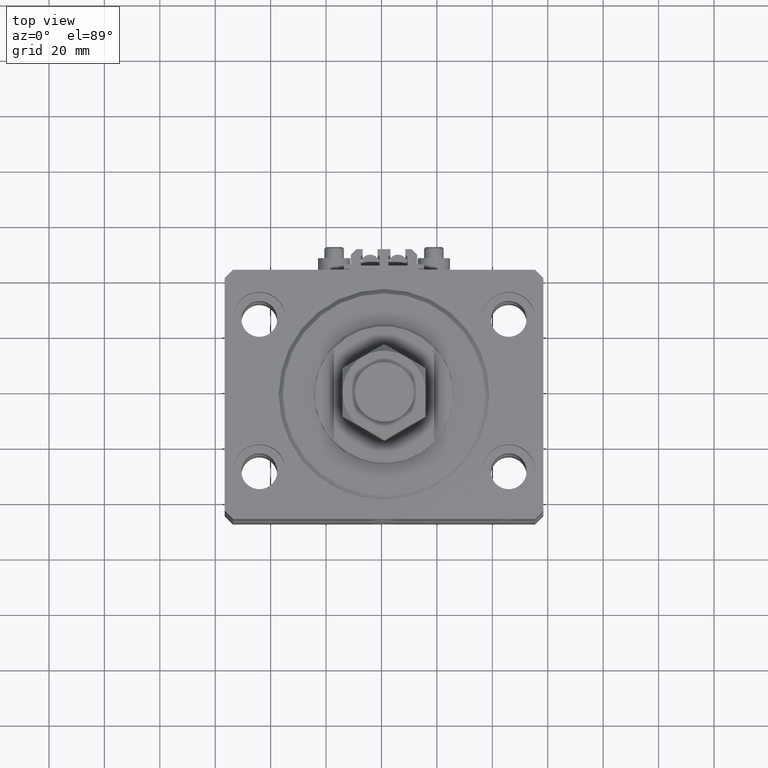
[diagram: clean part render]
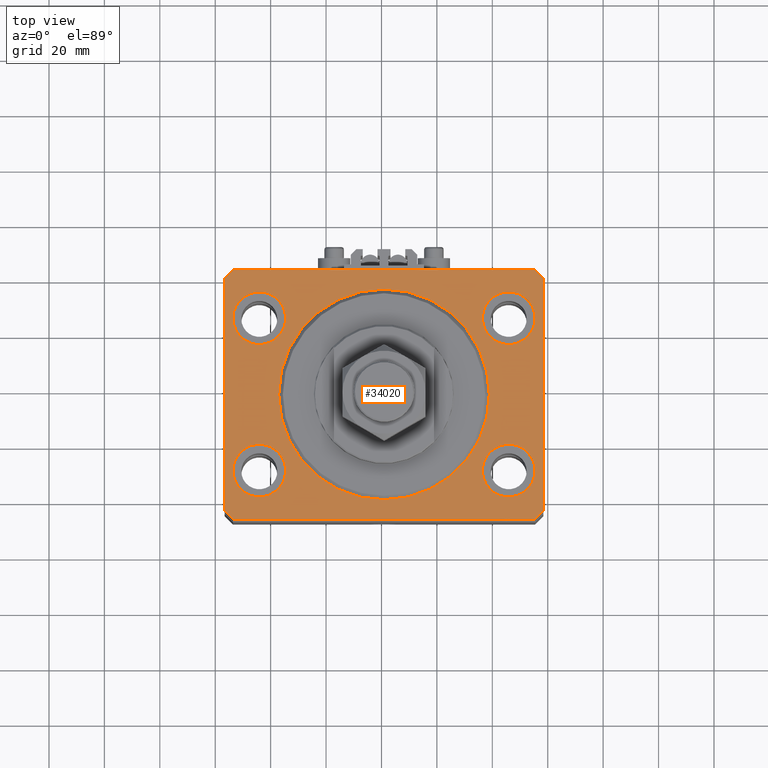
[diagram: same view with one face highlighted and labeled with its STEP entity id]
A machine part, top view. The second image highlights one B-rep face of the part: STEP entity #34020.
In plain terms, the highlighted planar face has unit normal (0, 0, 1).
Its self-contained STEP definition (entity closure, byte-faithful):
#561 = EDGE_LOOP ( 'NONE', ( #21848, #33538 ) ) ;
#698 = CARTESIAN_POINT ( 'NONE',  ( -45.00000000000000000, 27.50000000000000355, 0.000000000000000000 ) ) ;
#759 = DIRECTION ( 'NONE',  ( 1.000000000000000000, 0.000000000000000000, 0.000000000000000000 ) ) ;
#820 = LINE ( 'NONE', #36626, #8976 ) ;
#1121 = DIRECTION ( 'NONE',  ( 0.7071067811865483499, 0.7071067811865466846, 0.000000000000000000 ) ) ;
#1137 = CARTESIAN_POINT ( 'NONE',  ( 45.00000000000000000, 27.50000000000001776, 0.000000000000000000 ) ) ;
#1316 = CARTESIAN_POINT ( 'NONE',  ( 54.50000000000058975, 45.00000000000002842, 0.000000000000000000 ) ) ;
#1397 = DIRECTION ( 'NONE',  ( 1.000000000000000000, 0.000000000000000000, 0.000000000000000000 ) ) ;
#1443 = ORIENTED_EDGE ( 'NONE', *, *, #35913, .F. ) ;
#1833 = VERTEX_POINT ( 'NONE', #3881 ) ;
#2279 = ORIENTED_EDGE ( 'NONE', *, *, #46716, .F. ) ;
#3377 = EDGE_LOOP ( 'NONE', ( #42909, #42646 ) ) ;
#3881 = CARTESIAN_POINT ( 'NONE',  ( 54.50000000000000711, -44.99999999999998579, 0.000000000000000000 ) ) ;
#3904 = ORIENTED_EDGE ( 'NONE', *, *, #12902, .T. ) ;
#3964 = CARTESIAN_POINT ( 'NONE',  ( -54.49999999999999289, 45.00000000000000000, 0.000000000000000000 ) ) ;
#4034 = DIRECTION ( 'NONE',  ( 1.000000000000000000, 0.000000000000000000, 0.000000000000000000 ) ) ;
#4516 = EDGE_CURVE ( 'NONE', #5685, #42841, #41901, .T. ) ;
#4530 = EDGE_CURVE ( 'NONE', #42841, #5685, #13532, .T. ) ;
#4714 = LINE ( 'NONE', #3964, #12663 ) ;
#4797 = CARTESIAN_POINT ( 'NONE',  ( 54.50000000000058975, 45.00000000000002842, 0.000000000000000000 ) ) ;
#5550 = VERTEX_POINT ( 'NONE', #11218 ) ;
#5554 = FACE_BOUND ( 'NONE', #3377, .T. ) ;
#5685 = VERTEX_POINT ( 'NONE', #45376 ) ;
#5791 = LINE ( 'NONE', #50215, #45013 ) ;
#6205 = EDGE_CURVE ( 'NONE', #14405, #11109, #34468, .T. ) ;
#6794 = VECTOR ( 'NONE', #26138, 1000.000000000000000 ) ;
#7155 = EDGE_CURVE ( 'NONE', #10666, #14037, #4714, .T. ) ;
#7238 = CARTESIAN_POINT ( 'NONE',  ( -54.50000000000000000, 27.50000000000000355, 0.000000000000000000 ) ) ;
#8053 = DIRECTION ( 'NONE',  ( 0.000000000000000000, 0.000000000000000000, 1.000000000000000000 ) ) ;
#8141 = DIRECTION ( 'NONE',  ( 1.000000000000000000, 0.000000000000000000, 0.000000000000000000 ) ) ;
#8555 = CARTESIAN_POINT ( 'NONE',  ( 57.50000000000055422, 41.99999999999997868, 0.000000000000000000 ) ) ;
#8913 = CIRCLE ( 'NONE', #9734, 9.500000000000001776 ) ;
#8976 = VECTOR ( 'NONE', #40295, 1000.000000000000000 ) ;
#9139 = CARTESIAN_POINT ( 'NONE',  ( 57.50000000000000711, -41.99999999999998579, 0.000000000000000000 ) ) ;
#9238 = FACE_BOUND ( 'NONE', #561, .T. ) ;
#9646 = DIRECTION ( 'NONE',  ( 0.000000000000000000, 0.000000000000000000, 1.000000000000000000 ) ) ;
#9734 = AXIS2_PLACEMENT_3D ( 'NONE', #32823, #8053, #40160 ) ;
#9901 = CARTESIAN_POINT ( 'NONE',  ( -35.50000000000000000, -27.49999999999999645, 0.000000000000000000 ) ) ;
#9938 = DIRECTION ( 'NONE',  ( 0.7071067811865491270, -0.7071067811865459074, 0.000000000000000000 ) ) ;
#10253 = EDGE_LOOP ( 'NONE', ( #19717, #42978, #3904, #45624, #39362, #12356, #44530, #25509 ) ) ;
#10415 = DIRECTION ( 'NONE',  ( 0.000000000000000000, 0.000000000000000000, 1.000000000000000000 ) ) ;
#10666 = VERTEX_POINT ( 'NONE', #37883 ) ;
#11109 = VERTEX_POINT ( 'NONE', #20037 ) ;
#11218 = CARTESIAN_POINT ( 'NONE',  ( -35.50000000000000000, 27.50000000000000355, 0.000000000000000000 ) ) ;
#11272 = EDGE_LOOP ( 'NONE', ( #1443, #18275 ) ) ;
#11536 = AXIS2_PLACEMENT_3D ( 'NONE', #32994, #45277, #21508 ) ;
#11548 = DIRECTION ( 'NONE',  ( 0.000000000000000000, 0.000000000000000000, 1.000000000000000000 ) ) ;
#11820 = DIRECTION ( 'NONE',  ( -0.7071067811865483499, -0.7071067811865466846, 0.000000000000000000 ) ) ;
#12356 = ORIENTED_EDGE ( 'NONE', *, *, #34928, .T. ) ;
#12533 = CARTESIAN_POINT ( 'NONE',  ( -57.50000000000000711, -42.00000000000000711, 0.000000000000000000 ) ) ;
#12663 = VECTOR ( 'NONE', #11820, 1000.000000000000000 ) ;
#12797 = VECTOR ( 'NONE', #38679, 999.9999999999998863 ) ;
#12902 = EDGE_CURVE ( 'NONE', #14037, #14405, #32848, .T. ) ;
#13362 = EDGE_CURVE ( 'NONE', #25935, #10666, #41301, .T. ) ;
#13532 = CIRCLE ( 'NONE', #51093, 9.500000000000001776 ) ;
#13638 = VERTEX_POINT ( 'NONE', #9901 ) ;
#13678 = FACE_BOUND ( 'NONE', #40542, .T. ) ;
#13685 = CARTESIAN_POINT ( 'NONE',  ( 54.50000000000000711, -44.99999999999998579, 0.000000000000000000 ) ) ;
#13952 = CARTESIAN_POINT ( 'NONE',  ( 38.00000000000000000, 0.000000000000000000, 0.000000000000000000 ) ) ;
#14037 = VERTEX_POINT ( 'NONE', #39010 ) ;
#14403 = LINE ( 'NONE', #14658, #12797 ) ;
#14405 = VERTEX_POINT ( 'NONE', #12533 ) ;
#14658 = CARTESIAN_POINT ( 'NONE',  ( 57.50000000000055422, 41.99999999999997868, 0.000000000000000000 ) ) ;
#14921 = CIRCLE ( 'NONE', #49970, 9.500000000000001776 ) ;
#15077 = VERTEX_POINT ( 'NONE', #32258 ) ;
#15462 = VERTEX_POINT ( 'NONE', #9139 ) ;
#15567 = DIRECTION ( 'NONE',  ( 1.000000000000000000, 0.000000000000000000, 0.000000000000000000 ) ) ;
#16440 = CARTESIAN_POINT ( 'NONE',  ( -57.49999999999998579, 42.00000000000000711, 0.000000000000000000 ) ) ;
#17040 = EDGE_CURVE ( 'NONE', #42168, #25935, #14403, .T. ) ;
#18275 = ORIENTED_EDGE ( 'NONE', *, *, #47272, .F. ) ;
#19717 = ORIENTED_EDGE ( 'NONE', *, *, #13362, .T. ) ;
#19951 = CIRCLE ( 'NONE', #27425, 38.00000000000000000 ) ;
#20037 = CARTESIAN_POINT ( 'NONE',  ( -54.50000000000000711, -45.00000000000000000, 0.000000000000000000 ) ) ;
#20123 = ORIENTED_EDGE ( 'NONE', *, *, #46435, .F. ) ;
#20574 = DIRECTION ( 'NONE',  ( 1.000000000000000000, 0.000000000000000000, 0.000000000000000000 ) ) ;
#21508 = DIRECTION ( 'NONE',  ( 1.000000000000000000, 0.000000000000000000, -0.000000000000000000 ) ) ;
#21545 = VECTOR ( 'NONE', #1121, 1000.000000000000000 ) ;
#21848 = ORIENTED_EDGE ( 'NONE', *, *, #4516, .F. ) ;
#22356 = VERTEX_POINT ( 'NONE', #49623 ) ;
#22466 = AXIS2_PLACEMENT_3D ( 'NONE', #1137, #29096, #1397 ) ;
#22510 = DIRECTION ( 'NONE',  ( 1.000000000000000000, 1.273191542001326317E-16, 0.000000000000000000 ) ) ;
#22667 = VECTOR ( 'NONE', #9938, 1000.000000000000114 ) ;
#23308 = CIRCLE ( 'NONE', #29951, 9.500000000000001776 ) ;
#24876 = CARTESIAN_POINT ( 'NONE',  ( 35.50000000000000000, -27.49999999999999645, 0.000000000000000000 ) ) ;
#24915 = FACE_OUTER_BOUND ( 'NONE', #10253, .T. ) ;
#24967 = AXIS2_PLACEMENT_3D ( 'NONE', #40231, #27960, #759 ) ;
#25169 = FACE_BOUND ( 'NONE', #51560, .T. ) ;
#25428 = LINE ( 'NONE', #13685, #21545 ) ;
#25509 = ORIENTED_EDGE ( 'NONE', *, *, #17040, .T. ) ;
#25935 = VERTEX_POINT ( 'NONE', #4797 ) ;
#26138 = DIRECTION ( 'NONE',  ( -1.000000000000000000, -2.546383084002639322E-16, 0.000000000000000000 ) ) ;
#27425 = AXIS2_PLACEMENT_3D ( 'NONE', #36410, #47935, #4034 ) ;
#27460 = DIRECTION ( 'NONE',  ( 0.000000000000000000, 0.000000000000000000, 1.000000000000000000 ) ) ;
#27960 = DIRECTION ( 'NONE',  ( 0.000000000000000000, 0.000000000000000000, 1.000000000000000000 ) ) ;
#29086 = AXIS2_PLACEMENT_3D ( 'NONE', #46197, #10415, #15567 ) ;
#29096 = DIRECTION ( 'NONE',  ( 0.000000000000000000, 0.000000000000000000, 1.000000000000000000 ) ) ;
#29601 = EDGE_CURVE ( 'NONE', #13638, #15077, #36500, .T. ) ;
#29687 = VERTEX_POINT ( 'NONE', #13952 ) ;
#29951 = AXIS2_PLACEMENT_3D ( 'NONE', #698, #51435, #20574 ) ;
#30262 = DIRECTION ( 'NONE',  ( 1.000000000000000000, 0.000000000000000000, 0.000000000000000000 ) ) ;
#30493 = EDGE_CURVE ( 'NONE', #15077, #13638, #8913, .T. ) ;
#30706 = CARTESIAN_POINT ( 'NONE',  ( 35.50000000000000000, 27.50000000000001776, 0.000000000000000000 ) ) ;
#31370 = CARTESIAN_POINT ( 'NONE',  ( 45.00000000000000000, -27.49999999999999645, 0.000000000000000000 ) ) ;
#31390 = AXIS2_PLACEMENT_3D ( 'NONE', #37189, #49476, #40842 ) ;
#31899 = CARTESIAN_POINT ( 'NONE',  ( 45.00000000000000000, -27.49999999999999645, 0.000000000000000000 ) ) ;
#32258 = CARTESIAN_POINT ( 'NONE',  ( -54.50000000000000000, -27.49999999999999645, 0.000000000000000000 ) ) ;
#32823 = CARTESIAN_POINT ( 'NONE',  ( -45.00000000000000000, -27.49999999999999645, 0.000000000000000000 ) ) ;
#32848 = LINE ( 'NONE', #16440, #43504 ) ;
#32994 = CARTESIAN_POINT ( 'NONE',  ( 0.000000000000000000, 0.000000000000000000, 0.000000000000000000 ) ) ;
#33257 = FACE_BOUND ( 'NONE', #11272, .T. ) ;
#33538 = ORIENTED_EDGE ( 'NONE', *, *, #4530, .F. ) ;
#34020 = ADVANCED_FACE ( 'NONE', ( #13678, #9238, #25169, #33257, #5554, #24915 ), #45535, .T. ) ;
#34443 = CARTESIAN_POINT ( 'NONE',  ( -45.00000000000000000, 27.50000000000000355, 0.000000000000000000 ) ) ;
#34468 = LINE ( 'NONE', #42302, #22667 ) ;
#34928 = EDGE_CURVE ( 'NONE', #1833, #15462, #25428, .T. ) ;
#35709 = CARTESIAN_POINT ( 'NONE',  ( 54.50000000000000000, 27.50000000000001776, 0.000000000000000000 ) ) ;
#35913 = EDGE_CURVE ( 'NONE', #5550, #37855, #14921, .T. ) ;
#36410 = CARTESIAN_POINT ( 'NONE',  ( 0.000000000000000000, 0.000000000000000000, 0.000000000000000000 ) ) ;
#36500 = CIRCLE ( 'NONE', #31390, 9.500000000000001776 ) ;
#36626 = CARTESIAN_POINT ( 'NONE',  ( 57.50000000000000711, -41.99999999999998579, 0.000000000000000000 ) ) ;
#37189 = CARTESIAN_POINT ( 'NONE',  ( -45.00000000000000000, -27.49999999999999645, 0.000000000000000000 ) ) ;
#37855 = VERTEX_POINT ( 'NONE', #7238 ) ;
#37883 = CARTESIAN_POINT ( 'NONE',  ( -54.49999999999999289, 45.00000000000000000, 0.000000000000000000 ) ) ;
#38679 = DIRECTION ( 'NONE',  ( -0.7071067811865376918, 0.7071067811865574537, 0.000000000000000000 ) ) ;
#38815 = ORIENTED_EDGE ( 'NONE', *, *, #29601, .F. ) ;
#39010 = CARTESIAN_POINT ( 'NONE',  ( -57.49999999999998579, 42.00000000000000711, 0.000000000000000000 ) ) ;
#39147 = CIRCLE ( 'NONE', #24967, 38.00000000000000000 ) ;
#39362 = ORIENTED_EDGE ( 'NONE', *, *, #47951, .T. ) ;
#39714 = VERTEX_POINT ( 'NONE', #35709 ) ;
#40160 = DIRECTION ( 'NONE',  ( 1.000000000000000000, 0.000000000000000000, 0.000000000000000000 ) ) ;
#40231 = CARTESIAN_POINT ( 'NONE',  ( 0.000000000000000000, 0.000000000000000000, 0.000000000000000000 ) ) ;
#40295 = DIRECTION ( 'NONE',  ( 6.443258625056715108E-15, 1.000000000000000000, 0.000000000000000000 ) ) ;
#40542 = EDGE_LOOP ( 'NONE', ( #38815, #47449 ) ) ;
#40684 = DIRECTION ( 'NONE',  ( -2.478176394252581141E-16, -1.000000000000000000, 0.000000000000000000 ) ) ;
#40842 = DIRECTION ( 'NONE',  ( 1.000000000000000000, 0.000000000000000000, 0.000000000000000000 ) ) ;
#41301 = LINE ( 'NONE', #1316, #6794 ) ;
#41901 = CIRCLE ( 'NONE', #45217, 9.500000000000001776 ) ;
#42168 = VERTEX_POINT ( 'NONE', #8555 ) ;
#42302 = CARTESIAN_POINT ( 'NONE',  ( -57.50000000000000711, -42.00000000000000711, 0.000000000000000000 ) ) ;
#42646 = ORIENTED_EDGE ( 'NONE', *, *, #45738, .F. ) ;
#42841 = VERTEX_POINT ( 'NONE', #24876 ) ;
#42859 = EDGE_CURVE ( 'NONE', #15462, #42168, #820, .T. ) ;
#42909 = ORIENTED_EDGE ( 'NONE', *, *, #46937, .F. ) ;
#42978 = ORIENTED_EDGE ( 'NONE', *, *, #7155, .T. ) ;
#43504 = VECTOR ( 'NONE', #40684, 1000.000000000000000 ) ;
#44530 = ORIENTED_EDGE ( 'NONE', *, *, #42859, .T. ) ;
#44951 = CIRCLE ( 'NONE', #29086, 9.500000000000001776 ) ;
#45013 = VECTOR ( 'NONE', #22510, 1000.000000000000000 ) ;
#45217 = AXIS2_PLACEMENT_3D ( 'NONE', #31899, #11548, #47851 ) ;
#45277 = DIRECTION ( 'NONE',  ( 0.000000000000000000, 0.000000000000000000, 1.000000000000000000 ) ) ;
#45376 = CARTESIAN_POINT ( 'NONE',  ( 54.50000000000000000, -27.49999999999999645, 0.000000000000000000 ) ) ;
#45535 = PLANE ( 'NONE',  #11536 ) ;
#45624 = ORIENTED_EDGE ( 'NONE', *, *, #6205, .T. ) ;
#45738 = EDGE_CURVE ( 'NONE', #22356, #29687, #19951, .T. ) ;
#46197 = CARTESIAN_POINT ( 'NONE',  ( 45.00000000000000000, 27.50000000000001776, 0.000000000000000000 ) ) ;
#46435 = EDGE_CURVE ( 'NONE', #39714, #49486, #44951, .T. ) ;
#46716 = EDGE_CURVE ( 'NONE', #49486, #39714, #51689, .T. ) ;
#46937 = EDGE_CURVE ( 'NONE', #29687, #22356, #39147, .T. ) ;
#47272 = EDGE_CURVE ( 'NONE', #37855, #5550, #23308, .T. ) ;
#47449 = ORIENTED_EDGE ( 'NONE', *, *, #30493, .F. ) ;
#47851 = DIRECTION ( 'NONE',  ( 1.000000000000000000, 0.000000000000000000, 0.000000000000000000 ) ) ;
#47935 = DIRECTION ( 'NONE',  ( 0.000000000000000000, 0.000000000000000000, 1.000000000000000000 ) ) ;
#47951 = EDGE_CURVE ( 'NONE', #11109, #1833, #5791, .T. ) ;
#49476 = DIRECTION ( 'NONE',  ( 0.000000000000000000, 0.000000000000000000, 1.000000000000000000 ) ) ;
#49486 = VERTEX_POINT ( 'NONE', #30706 ) ;
#49623 = CARTESIAN_POINT ( 'NONE',  ( -38.00000000000000000, 4.653657836759941941E-15, 0.000000000000000000 ) ) ;
#49970 = AXIS2_PLACEMENT_3D ( 'NONE', #34443, #9646, #30262 ) ;
#50215 = CARTESIAN_POINT ( 'NONE',  ( -54.50000000000000711, -45.00000000000000000, 0.000000000000000000 ) ) ;
#51093 = AXIS2_PLACEMENT_3D ( 'NONE', #31370, #27460, #8141 ) ;
#51435 = DIRECTION ( 'NONE',  ( 0.000000000000000000, 0.000000000000000000, 1.000000000000000000 ) ) ;
#51560 = EDGE_LOOP ( 'NONE', ( #20123, #2279 ) ) ;
#51689 = CIRCLE ( 'NONE', #22466, 9.500000000000001776 ) ;